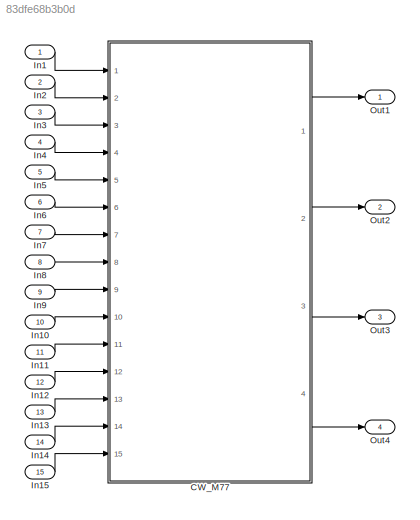
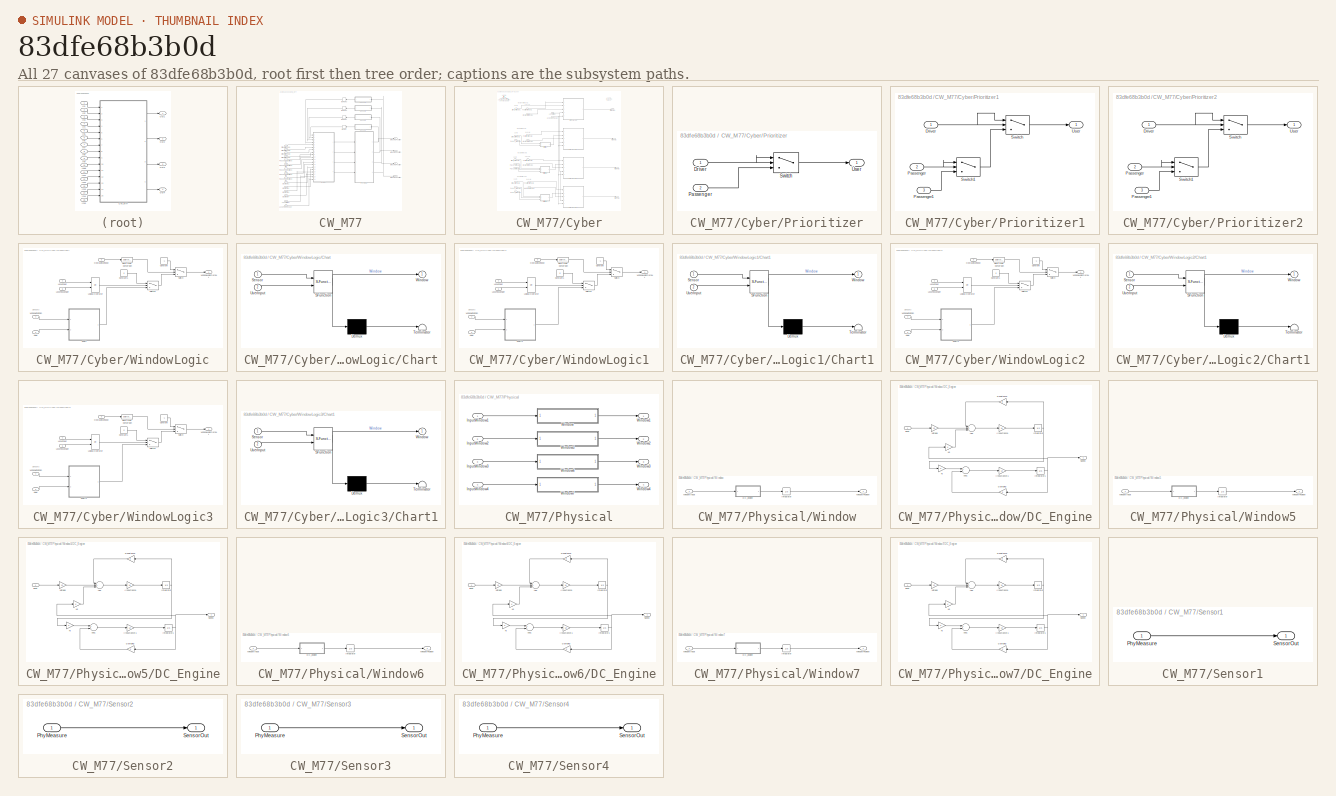
[diagram: thumbnail index - all 27 canvases of the model, root first then tree order]
MODEL slx_83dfe68b3b0d
KIND model
CONFIG AbsTol = auto
CONFIG EnableMultiTasking = off
CONFIG FixedStep = auto
CONFIG MaxStep = auto
CONFIG MinStep = auto
CONFIG RelTol = 1e-3
CONFIG SampleTimeConstraint = Unconstrained
CONFIG Solver = VariableStepAuto
CONFIG SolverName = VariableStepAuto
CONFIG StartTime = 0.0
CONFIG StopTime = 10.0
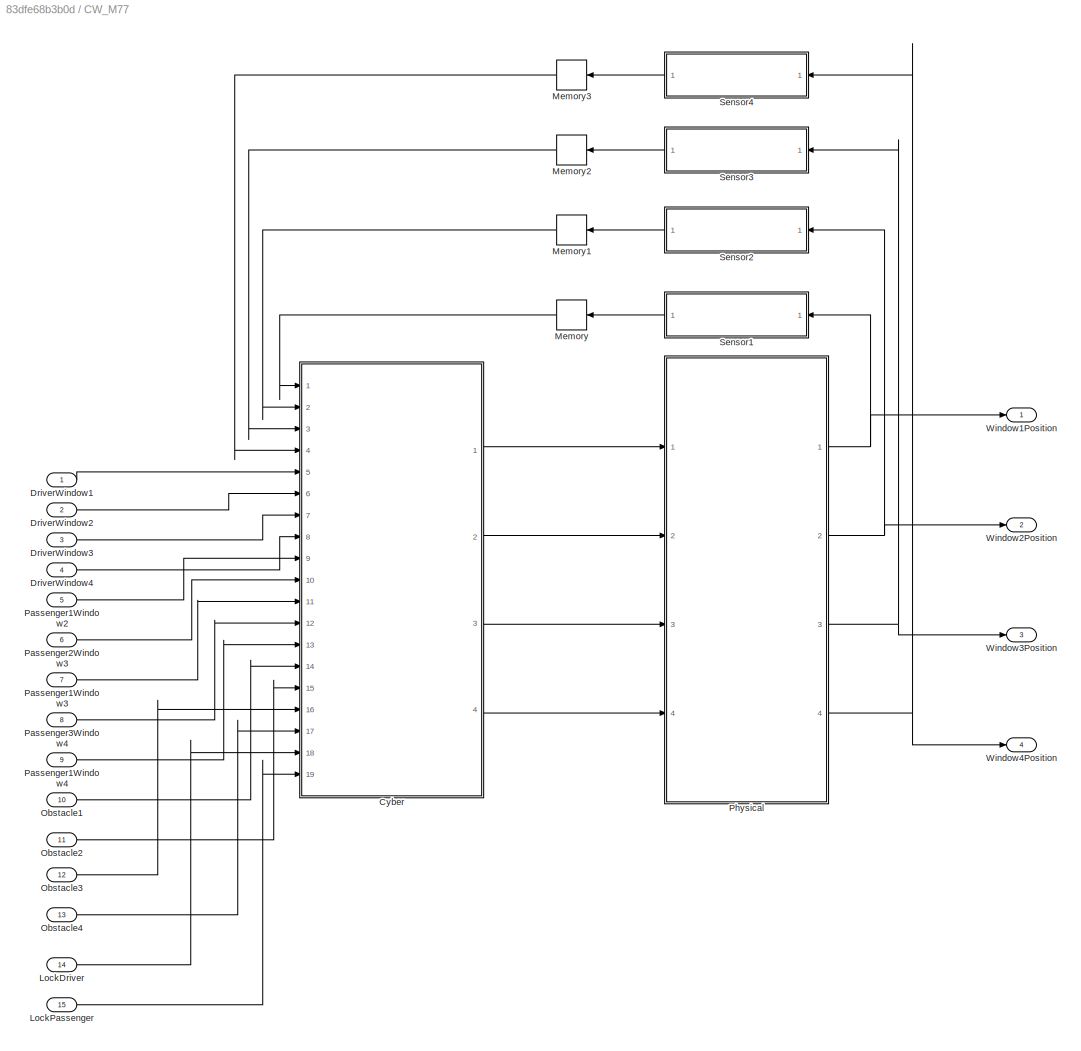
BLOCK [SubSystem] CW_M77
  Ports = [15, 4]
  RequestExecContextInheritance = off
  Variant = off
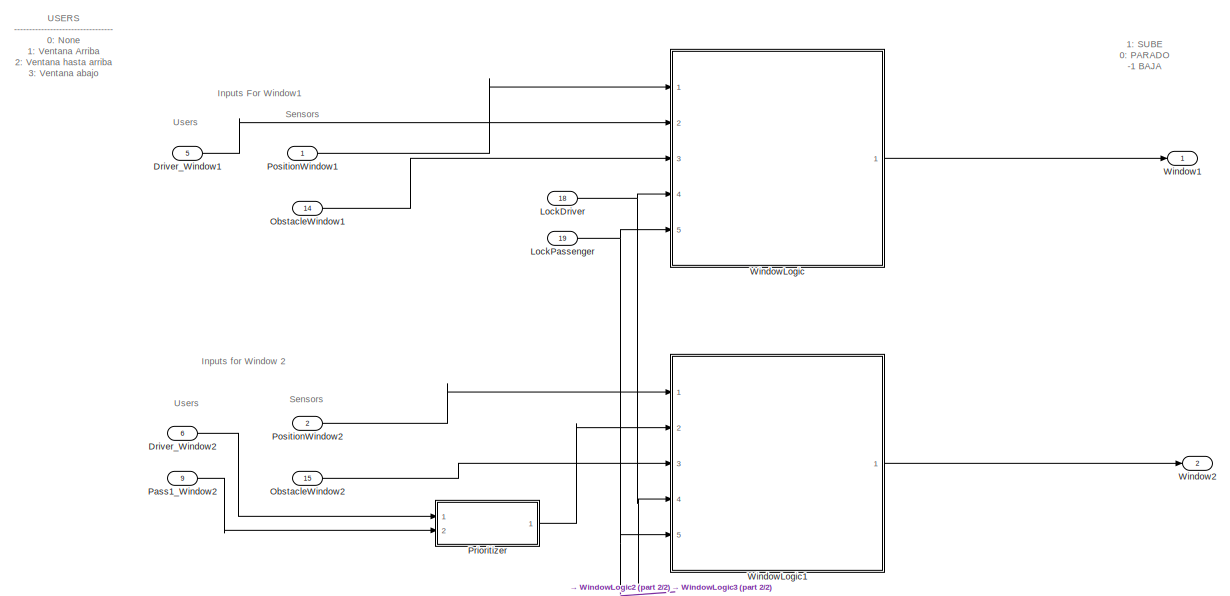
[diagram: CW_M77/Cyber - part 1/2, full width, top band]
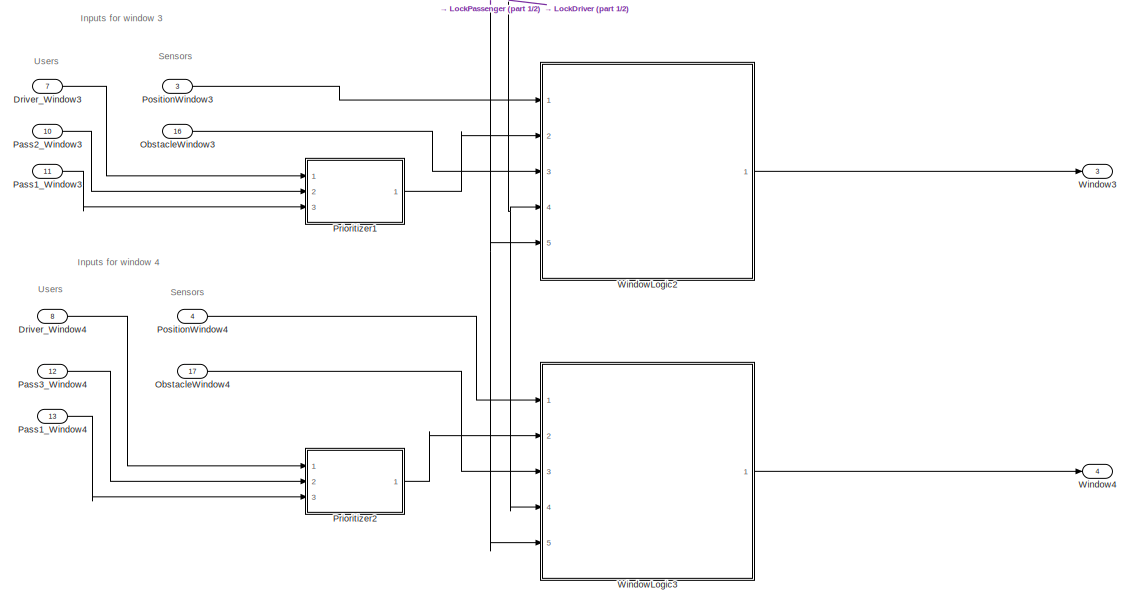
[diagram: CW_M77/Cyber - part 2/2, full width, bottom band]
BLOCK [SubSystem] CW_M77/Cyber
  Ports = [19, 4]
  RequestExecContextInheritance = off
  Variant = off
BLOCK [Inport] CW_M77/Cyber/Driver_Window1
  IconDisplay = Port number
  Port = 5
BLOCK [Inport] CW_M77/Cyber/Driver_Window2
  IconDisplay = Port number
  Port = 6
BLOCK [Inport] CW_M77/Cyber/Driver_Window3
  IconDisplay = Port number
  Port = 7
BLOCK [Inport] CW_M77/Cyber/Driver_Window4
  IconDisplay = Port number
  Port = 8
BLOCK [Inport] CW_M77/Cyber/LockDriver
  IconDisplay = Port number
  Port = 18
BLOCK [Inport] CW_M77/Cyber/LockPassenger
  IconDisplay = Port number
  Port = 19
BLOCK [Inport] CW_M77/Cyber/ObstacleWindow1
  IconDisplay = Port number
  Port = 14
BLOCK [Inport] CW_M77/Cyber/ObstacleWindow2
  IconDisplay = Port number
  Port = 15
BLOCK [Inport] CW_M77/Cyber/ObstacleWindow3
  IconDisplay = Port number
  Port = 16
BLOCK [Inport] CW_M77/Cyber/ObstacleWindow4
  IconDisplay = Port number
  Port = 17
BLOCK [Inport] CW_M77/Cyber/Pass1_Window2
  IconDisplay = Port number
  Port = 9
BLOCK [Inport] CW_M77/Cyber/Pass1_Window3
  IconDisplay = Port number
  Port = 11
BLOCK [Inport] CW_M77/Cyber/Pass1_Window4
  IconDisplay = Port number
  Port = 13
BLOCK [Inport] CW_M77/Cyber/Pass2_Window3
  IconDisplay = Port number
  Port = 10
BLOCK [Inport] CW_M77/Cyber/Pass3_Window4
  IconDisplay = Port number
  Port = 12
BLOCK [Inport] CW_M77/Cyber/PositionWindow1
  IconDisplay = Port number
BLOCK [Inport] CW_M77/Cyber/PositionWindow2
  IconDisplay = Port number
  Port = 2
BLOCK [Inport] CW_M77/Cyber/PositionWindow3
  IconDisplay = Port number
  Port = 3
BLOCK [Inport] CW_M77/Cyber/PositionWindow4
  IconDisplay = Port number
  Port = 4
BLOCK [SubSystem] CW_M77/Cyber/Prioritizer
  Ports = [2, 1]
  RequestExecContextInheritance = off
  Variant = off
BLOCK [Inport] CW_M77/Cyber/Prioritizer/Driver
  IconDisplay = Port number
BLOCK [Inport] CW_M77/Cyber/Prioritizer/Passenger
  IconDisplay = Port number
  Port = 2
BLOCK [Switch] CW_M77/Cyber/Prioritizer/Switch
  Criteria = u2 ~= 0
  InputSameDT = off
  SaturateOnIntegerOverflow = off
BLOCK [Outport] CW_M77/Cyber/Prioritizer/User
  IconDisplay = Port number
BLOCK [SubSystem] CW_M77/Cyber/Prioritizer1
  Ports = [3, 1]
  RequestExecContextInheritance = off
  Variant = off
BLOCK [Inport] CW_M77/Cyber/Prioritizer1/Driver
  IconDisplay = Port number
BLOCK [Inport] CW_M77/Cyber/Prioritizer1/Passenger
  IconDisplay = Port number
  Port = 2
BLOCK [Inport] CW_M77/Cyber/Prioritizer1/Passenger1
  IconDisplay = Port number
  Port = 3
BLOCK [Switch] CW_M77/Cyber/Prioritizer1/Switch
  Criteria = u2 ~= 0
  InputSameDT = off
  SaturateOnIntegerOverflow = off
BLOCK [Switch] CW_M77/Cyber/Prioritizer1/Switch1
  Criteria = u2 ~= 0
  InputSameDT = off
  SaturateOnIntegerOverflow = off
BLOCK [Outport] CW_M77/Cyber/Prioritizer1/User
  IconDisplay = Port number
BLOCK [SubSystem] CW_M77/Cyber/Prioritizer2
  Ports = [3, 1]
  RequestExecContextInheritance = off
  Variant = off
BLOCK [Inport] CW_M77/Cyber/Prioritizer2/Driver
  IconDisplay = Port number
BLOCK [Inport] CW_M77/Cyber/Prioritizer2/Passenger
  IconDisplay = Port number
  Port = 2
BLOCK [Inport] CW_M77/Cyber/Prioritizer2/Passenger1
  IconDisplay = Port number
  Port = 3
BLOCK [Switch] CW_M77/Cyber/Prioritizer2/Switch
  Criteria = u2 ~= 0
  InputSameDT = off
  SaturateOnIntegerOverflow = off
BLOCK [Switch] CW_M77/Cyber/Prioritizer2/Switch1
  Criteria = u2 ~= 0
  InputSameDT = off
  SaturateOnIntegerOverflow = off
BLOCK [Outport] CW_M77/Cyber/Prioritizer2/User
  IconDisplay = Port number
BLOCK [Outport] CW_M77/Cyber/Window1
  IconDisplay = Port number
BLOCK [Outport] CW_M77/Cyber/Window2
  IconDisplay = Port number
  Port = 2
BLOCK [Outport] CW_M77/Cyber/Window3
  IconDisplay = Port number
  Port = 3
BLOCK [Outport] CW_M77/Cyber/Window4
  IconDisplay = Port number
  Port = 4
BLOCK [SubSystem] CW_M77/Cyber/WindowLogic
  Ports = [5, 1]
  RequestExecContextInheritance = off
  Variant = off
BLOCK [SubSystem] CW_M77/Cyber/WindowLogic/Chart
  ErrorFcn = Stateflow.Translate.translate
  PermitHierarchicalResolution = ExplicitOnly
  Ports = [2, 1]
  RequestExecContextInheritance = off
  SFBlockType = Chart
  TreatAsAtomicUnit = on
  Variant = off
BLOCK [Demux] CW_M77/Cyber/WindowLogic/Chart/ Demux 
  Outputs = 1
  Ports = [1, 1]
BLOCK [S-Function] CW_M77/Cyber/WindowLogic/Chart/ SFunction 
  EnableBusSupport = off
  FunctionName = sf_sfun
  PortCounts = [2 2]
  Ports = [2, 2]
  SFcnIsStateOwnerBlock = off
  SFunctionDeploymentMode = off
  Tag = Stateflow S-Function CW_M77 29
BLOCK [Terminator] CW_M77/Cyber/WindowLogic/Chart/ Terminator 
BLOCK [Inport] CW_M77/Cyber/WindowLogic/Chart/Sensor
  IconDisplay = Port number
BLOCK [Inport] CW_M77/Cyber/WindowLogic/Chart/UserInput
  IconDisplay = Port number
  Port = 2
BLOCK [Outport] CW_M77/Cyber/WindowLogic/Chart/Window
  IconDisplay = Port number
BLOCK [Constant] CW_M77/Cyber/WindowLogic/Constant
  Value = -1
BLOCK [Constant] CW_M77/Cyber/WindowLogic/Constant1
  Value = 0
BLOCK [DataTypeConversion] CW_M77/Cyber/WindowLogic/Data Type Conversion
  RndMeth = Floor
  SaturateOnIntegerOverflow = off
BLOCK [Inport] CW_M77/Cyber/WindowLogic/LockDriver
  IconDisplay = Port number
  Port = 4
BLOCK [Inport] CW_M77/Cyber/WindowLogic/LockPassenger
  IconDisplay = Port number
  Port = 5
BLOCK [Logic] CW_M77/Cyber/WindowLogic/Logical Operator
  AllPortsSameDT = off
  Operator = OR
  OutDataTypeStr = boolean
  Ports = [2, 1]
BLOCK [Inport] CW_M77/Cyber/WindowLogic/ObstacleWindow
  IconDisplay = Port number
  Port = 3
BLOCK [Switch] CW_M77/Cyber/WindowLogic/Switch
  Criteria = u2 ~= 0
  InputSameDT = off
  SaturateOnIntegerOverflow = off
  Threshold = 1
  ZeroCross = off
BLOCK [Switch] CW_M77/Cyber/WindowLogic/Switch1
  Criteria = u2 ~= 0
  InputSameDT = off
  SaturateOnIntegerOverflow = off
BLOCK [Inport] CW_M77/Cyber/WindowLogic/User
  IconDisplay = Port number
  Port = 2
BLOCK [Outport] CW_M77/Cyber/WindowLogic/WindowLogicOutput
  IconDisplay = Port number
BLOCK [Inport] CW_M77/Cyber/WindowLogic/WindowPosition
  IconDisplay = Port number
BLOCK [SubSystem] CW_M77/Cyber/WindowLogic1
  Ports = [5, 1]
  RequestExecContextInheritance = off
  Variant = off
BLOCK [SubSystem] CW_M77/Cyber/WindowLogic1/Chart1
  ErrorFcn = Stateflow.Translate.translate
  PermitHierarchicalResolution = ExplicitOnly
  Ports = [2, 1]
  RequestExecContextInheritance = off
  SFBlockType = Chart
  TreatAsAtomicUnit = on
  Variant = off
BLOCK [Demux] CW_M77/Cyber/WindowLogic1/Chart1/ Demux 
  Outputs = 1
  Ports = [1, 1]
BLOCK [S-Function] CW_M77/Cyber/WindowLogic1/Chart1/ SFunction 
  EnableBusSupport = off
  FunctionName = sf_sfun
  PortCounts = [2 2]
  Ports = [2, 2]
  SFcnIsStateOwnerBlock = off
  SFunctionDeploymentMode = off
  Tag = Stateflow S-Function CW_M77 30
BLOCK [Terminator] CW_M77/Cyber/WindowLogic1/Chart1/ Terminator 
BLOCK [Inport] CW_M77/Cyber/WindowLogic1/Chart1/Sensor
  IconDisplay = Port number
BLOCK [Inport] CW_M77/Cyber/WindowLogic1/Chart1/UserInput
  IconDisplay = Port number
  Port = 2
BLOCK [Outport] CW_M77/Cyber/WindowLogic1/Chart1/Window
  IconDisplay = Port number
BLOCK [Constant] CW_M77/Cyber/WindowLogic1/Constant
  Value = -1
BLOCK [Constant] CW_M77/Cyber/WindowLogic1/Constant1
  Value = 0
BLOCK [DataTypeConversion] CW_M77/Cyber/WindowLogic1/Data Type Conversion
  RndMeth = Floor
  SaturateOnIntegerOverflow = off
BLOCK [Inport] CW_M77/Cyber/WindowLogic1/LockDriver
  IconDisplay = Port number
  Port = 4
BLOCK [Inport] CW_M77/Cyber/WindowLogic1/LockPassenger
  IconDisplay = Port number
  Port = 5
BLOCK [Logic] CW_M77/Cyber/WindowLogic1/Logical Operator
  AllPortsSameDT = off
  Operator = OR
  OutDataTypeStr = boolean
  Ports = [2, 1]
BLOCK [Inport] CW_M77/Cyber/WindowLogic1/ObstacleWindow
  IconDisplay = Port number
  Port = 3
BLOCK [Switch] CW_M77/Cyber/WindowLogic1/Switch
  Criteria = u2 ~= 0
  InputSameDT = off
  SaturateOnIntegerOverflow = off
  Threshold = 1
  ZeroCross = off
BLOCK [Switch] CW_M77/Cyber/WindowLogic1/Switch1
  Criteria = u2 ~= 0
  InputSameDT = off
  SaturateOnIntegerOverflow = off
BLOCK [Inport] CW_M77/Cyber/WindowLogic1/User
  IconDisplay = Port number
  Port = 2
BLOCK [Outport] CW_M77/Cyber/WindowLogic1/WindowLogicOutput
  IconDisplay = Port number
BLOCK [Inport] CW_M77/Cyber/WindowLogic1/WindowPosition
  IconDisplay = Port number
BLOCK [SubSystem] CW_M77/Cyber/WindowLogic2
  Ports = [5, 1]
  RequestExecContextInheritance = off
  Variant = off
BLOCK [SubSystem] CW_M77/Cyber/WindowLogic2/Chart1
  ErrorFcn = Stateflow.Translate.translate
  PermitHierarchicalResolution = ExplicitOnly
  Ports = [2, 1]
  RequestExecContextInheritance = off
  SFBlockType = Chart
  TreatAsAtomicUnit = on
  Variant = off
BLOCK [Demux] CW_M77/Cyber/WindowLogic2/Chart1/ Demux 
  Outputs = 1
  Ports = [1, 1]
BLOCK [S-Function] CW_M77/Cyber/WindowLogic2/Chart1/ SFunction 
  EnableBusSupport = off
  FunctionName = sf_sfun
  PortCounts = [2 2]
  Ports = [2, 2]
  SFcnIsStateOwnerBlock = off
  SFunctionDeploymentMode = off
  Tag = Stateflow S-Function CW_M77 31
BLOCK [Terminator] CW_M77/Cyber/WindowLogic2/Chart1/ Terminator 
BLOCK [Inport] CW_M77/Cyber/WindowLogic2/Chart1/Sensor
  IconDisplay = Port number
BLOCK [Inport] CW_M77/Cyber/WindowLogic2/Chart1/UserInput
  IconDisplay = Port number
  Port = 2
BLOCK [Outport] CW_M77/Cyber/WindowLogic2/Chart1/Window
  IconDisplay = Port number
BLOCK [Constant] CW_M77/Cyber/WindowLogic2/Constant
  Value = -1
BLOCK [Constant] CW_M77/Cyber/WindowLogic2/Constant1
  Value = 0
BLOCK [DataTypeConversion] CW_M77/Cyber/WindowLogic2/Data Type Conversion
  RndMeth = Floor
  SaturateOnIntegerOverflow = off
BLOCK [Inport] CW_M77/Cyber/WindowLogic2/LockDriver
  IconDisplay = Port number
  Port = 4
BLOCK [Inport] CW_M77/Cyber/WindowLogic2/LockPassenger
  IconDisplay = Port number
  Port = 5
BLOCK [Logic] CW_M77/Cyber/WindowLogic2/Logical Operator
  AllPortsSameDT = off
  Operator = OR
  OutDataTypeStr = boolean
  Ports = [2, 1]
BLOCK [Inport] CW_M77/Cyber/WindowLogic2/ObstacleWindow
  IconDisplay = Port number
  Port = 3
BLOCK [Switch] CW_M77/Cyber/WindowLogic2/Switch
  Criteria = u2 ~= 0
  InputSameDT = off
  SaturateOnIntegerOverflow = off
  Threshold = 1
  ZeroCross = off
BLOCK [Switch] CW_M77/Cyber/WindowLogic2/Switch1
  Criteria = u2 ~= 0
  InputSameDT = off
  SaturateOnIntegerOverflow = off
BLOCK [Inport] CW_M77/Cyber/WindowLogic2/User
  IconDisplay = Port number
  Port = 2
BLOCK [Outport] CW_M77/Cyber/WindowLogic2/WindowLogicOutput
  IconDisplay = Port number
BLOCK [Inport] CW_M77/Cyber/WindowLogic2/WindowPosition
  IconDisplay = Port number
BLOCK [SubSystem] CW_M77/Cyber/WindowLogic3
  Ports = [5, 1]
  RequestExecContextInheritance = off
  Variant = off
BLOCK [SubSystem] CW_M77/Cyber/WindowLogic3/Chart1
  ErrorFcn = Stateflow.Translate.translate
  PermitHierarchicalResolution = ExplicitOnly
  Ports = [2, 1]
  RequestExecContextInheritance = off
  SFBlockType = Chart
  TreatAsAtomicUnit = on
  Variant = off
BLOCK [Demux] CW_M77/Cyber/WindowLogic3/Chart1/ Demux 
  Outputs = 1
  Ports = [1, 1]
BLOCK [S-Function] CW_M77/Cyber/WindowLogic3/Chart1/ SFunction 
  EnableBusSupport = off
  FunctionName = sf_sfun
  PortCounts = [2 2]
  Ports = [2, 2]
  SFcnIsStateOwnerBlock = off
  SFunctionDeploymentMode = off
  Tag = Stateflow S-Function CW_M77 32
BLOCK [Terminator] CW_M77/Cyber/WindowLogic3/Chart1/ Terminator 
BLOCK [Inport] CW_M77/Cyber/WindowLogic3/Chart1/Sensor
  IconDisplay = Port number
BLOCK [Inport] CW_M77/Cyber/WindowLogic3/Chart1/UserInput
  IconDisplay = Port number
  Port = 2
BLOCK [Outport] CW_M77/Cyber/WindowLogic3/Chart1/Window
  IconDisplay = Port number
BLOCK [Constant] CW_M77/Cyber/WindowLogic3/Constant
  Value = -1
BLOCK [Constant] CW_M77/Cyber/WindowLogic3/Constant1
  Value = 0
BLOCK [DataTypeConversion] CW_M77/Cyber/WindowLogic3/Data Type Conversion
  RndMeth = Floor
  SaturateOnIntegerOverflow = off
BLOCK [Inport] CW_M77/Cyber/WindowLogic3/LockDriver
  IconDisplay = Port number
  Port = 4
BLOCK [Inport] CW_M77/Cyber/WindowLogic3/LockPassenger
  IconDisplay = Port number
  Port = 5
BLOCK [Logic] CW_M77/Cyber/WindowLogic3/Logical Operator
  AllPortsSameDT = off
  Operator = OR
  OutDataTypeStr = boolean
  Ports = [2, 1]
BLOCK [Inport] CW_M77/Cyber/WindowLogic3/ObstacleWindow
  IconDisplay = Port number
  Port = 3
BLOCK [Switch] CW_M77/Cyber/WindowLogic3/Switch
  Criteria = u2 ~= 0
  InputSameDT = off
  SaturateOnIntegerOverflow = off
  Threshold = 1
  ZeroCross = off
BLOCK [Switch] CW_M77/Cyber/WindowLogic3/Switch1
  Criteria = u2 ~= 0
  InputSameDT = off
  SaturateOnIntegerOverflow = off
BLOCK [Inport] CW_M77/Cyber/WindowLogic3/User
  IconDisplay = Port number
  Port = 2
BLOCK [Outport] CW_M77/Cyber/WindowLogic3/WindowLogicOutput
  IconDisplay = Port number
BLOCK [Inport] CW_M77/Cyber/WindowLogic3/WindowPosition
  IconDisplay = Port number
BLOCK [Inport] CW_M77/DriverWindow1
  IconDisplay = Port number
BLOCK [Inport] CW_M77/DriverWindow2
  IconDisplay = Port number
  Port = 2
BLOCK [Inport] CW_M77/DriverWindow3
  IconDisplay = Port number
  Port = 3
BLOCK [Inport] CW_M77/DriverWindow4
  IconDisplay = Port number
  Port = 4
BLOCK [Inport] CW_M77/LockDriver
  IconDisplay = Port number
  Port = 14
BLOCK [Inport] CW_M77/LockPassenger
  IconDisplay = Port number
  Port = 15
BLOCK [Memory] CW_M77/Memory
BLOCK [Memory] CW_M77/Memory1
BLOCK [Memory] CW_M77/Memory2
BLOCK [Memory] CW_M77/Memory3
BLOCK [Inport] CW_M77/Obstacle1
  IconDisplay = Port number
  Port = 10
BLOCK [Inport] CW_M77/Obstacle2
  IconDisplay = Port number
  Port = 11
BLOCK [Inport] CW_M77/Obstacle3
  IconDisplay = Port number
  Port = 12
BLOCK [Inport] CW_M77/Obstacle4
  IconDisplay = Port number
  Port = 13
BLOCK [Inport] CW_M77/Passenger1Window2
  IconDisplay = Port number
  Port = 5
BLOCK [Inport] CW_M77/Passenger1Window3
  IconDisplay = Port number
  Port = 7
BLOCK [Inport] CW_M77/Passenger1Window4
  IconDisplay = Port number
  Port = 9
BLOCK [Inport] CW_M77/Passenger2Window3
  IconDisplay = Port number
  Port = 6
BLOCK [Inport] CW_M77/Passenger3Window4
  IconDisplay = Port number
  Port = 8
BLOCK [SubSystem] CW_M77/Physical
  Ports = [4, 4]
  RequestExecContextInheritance = off
  Variant = off
BLOCK [Inport] CW_M77/Physical/InputWindow1
  IconDisplay = Port number
BLOCK [Inport] CW_M77/Physical/InputWindow2
  IconDisplay = Port number
  Port = 2
BLOCK [Inport] CW_M77/Physical/InputWindow3
  IconDisplay = Port number
  Port = 3
BLOCK [Inport] CW_M77/Physical/InputWindow4
  IconDisplay = Port number
  Port = 4
BLOCK [SubSystem] CW_M77/Physical/Window
  Ports = [1, 1]
  RequestExecContextInheritance = off
  Variant = off
BLOCK [SubSystem] CW_M77/Physical/Window/DC_Engine
  Ports = [1, 1]
  RequestExecContextInheritance = off
  Variant = off
BLOCK [Gain] CW_M77/Physical/Window/DC_Engine/(Inductance)
  Gain = 1/L
  OutDataTypeStr = Inherit: Inherit via internal rule
  ParamDataTypeStr = Inherit: Inherit via internal rule
  SaturateOnIntegerOverflow = off
BLOCK [Gain] CW_M77/Physical/Window/DC_Engine/(Inductance)1
  Gain = 1/J
  OutDataTypeStr = Inherit: Inherit via internal rule
  ParamDataTypeStr = Inherit: Inherit via internal rule
  SaturateOnIntegerOverflow = off
BLOCK [Sum] CW_M77/Physical/Window/DC_Engine/Add
  InputSameDT = off
  Inputs = -+-
  OutDataTypeStr = Inherit: Inherit via internal rule
  Ports = [3, 1]
  SaturateOnIntegerOverflow = off
BLOCK [Sum] CW_M77/Physical/Window/DC_Engine/Add1
  InputSameDT = off
  Inputs = +-
  OutDataTypeStr = Inherit: Inherit via internal rule
  Ports = [2, 1]
  SaturateOnIntegerOverflow = off
BLOCK [Gain] CW_M77/Physical/Window/DC_Engine/Damping
  Gain = b
  OutDataTypeStr = Inherit: Inherit via internal rule
  ParamDataTypeStr = Inherit: Inherit via internal rule
  SaturateOnIntegerOverflow = off
BLOCK [Integrator] CW_M77/Physical/Window/DC_Engine/Integrator
  Ports = [1, 1]
BLOCK [Integrator] CW_M77/Physical/Window/DC_Engine/Integrator1
  Ports = [1, 1]
BLOCK [Gain] CW_M77/Physical/Window/DC_Engine/Ke
  Gain = K
  OutDataTypeStr = Inherit: Inherit via internal rule
  ParamDataTypeStr = Inherit: Inherit via internal rule
  SaturateOnIntegerOverflow = off
BLOCK [Gain] CW_M77/Physical/Window/DC_Engine/Kt
  Gain = K
  OutDataTypeStr = Inherit: Inherit via internal rule
  ParamDataTypeStr = Inherit: Inherit via internal rule
  SaturateOnIntegerOverflow = off
BLOCK [Gain] CW_M77/Physical/Window/DC_Engine/Resistance
  Gain = R
  OutDataTypeStr = Inherit: Inherit via internal rule
  ParamDataTypeStr = Inherit: Inherit via internal rule
  SaturateOnIntegerOverflow = off
BLOCK [Outport] CW_M77/Physical/Window/DC_Engine/Speed
  IconDisplay = Port number
BLOCK [Gain] CW_M77/Physical/Window/DC_Engine/Voltage
  Gain = 10
  OutDataTypeStr = Inherit: Inherit via internal rule
  ParamDataTypeStr = Inherit: Inherit via internal rule
  SaturateOnIntegerOverflow = off
BLOCK [Inport] CW_M77/Physical/Window/DC_Engine/input
  IconDisplay = Port number
BLOCK [Integrator] CW_M77/Physical/Window/Integrator
  InitialCondition = 5
  LimitOutput = on
  LowerSaturationLimit = 0
  Ports = [1, 1]
  UpperSaturationLimit = 5
BLOCK [Inport] CW_M77/Physical/Window/WindowInput
  IconDisplay = Port number
BLOCK [Outport] CW_M77/Physical/Window/WindowPosition
  IconDisplay = Port number
BLOCK [Outport] CW_M77/Physical/Window1
  IconDisplay = Port number
BLOCK [Outport] CW_M77/Physical/Window2
  IconDisplay = Port number
  Port = 2
BLOCK [Outport] CW_M77/Physical/Window3
  IconDisplay = Port number
  Port = 3
BLOCK [Outport] CW_M77/Physical/Window4
  IconDisplay = Port number
  Port = 4
BLOCK [SubSystem] CW_M77/Physical/Window5
  Ports = [1, 1]
  RequestExecContextInheritance = off
  Variant = off
BLOCK [SubSystem] CW_M77/Physical/Window5/DC_Engine
  Ports = [1, 1]
  RequestExecContextInheritance = off
  Variant = off
BLOCK [Gain] CW_M77/Physical/Window5/DC_Engine/(Inductance)
  Gain = 1/L
  OutDataTypeStr = Inherit: Inherit via internal rule
  ParamDataTypeStr = Inherit: Inherit via internal rule
  SaturateOnIntegerOverflow = off
BLOCK [Gain] CW_M77/Physical/Window5/DC_Engine/(Inductance)1
  Gain = 1/J
  OutDataTypeStr = Inherit: Inherit via internal rule
  ParamDataTypeStr = Inherit: Inherit via internal rule
  SaturateOnIntegerOverflow = off
BLOCK [Sum] CW_M77/Physical/Window5/DC_Engine/Add
  InputSameDT = off
  Inputs = -+-
  OutDataTypeStr = Inherit: Inherit via internal rule
  Ports = [3, 1]
  SaturateOnIntegerOverflow = off
BLOCK [Sum] CW_M77/Physical/Window5/DC_Engine/Add1
  InputSameDT = off
  Inputs = +-
  OutDataTypeStr = Inherit: Inherit via internal rule
  Ports = [2, 1]
  SaturateOnIntegerOverflow = off
BLOCK [Gain] CW_M77/Physical/Window5/DC_Engine/Damping
  Gain = b
  OutDataTypeStr = Inherit: Inherit via internal rule
  ParamDataTypeStr = Inherit: Inherit via internal rule
  SaturateOnIntegerOverflow = off
BLOCK [Integrator] CW_M77/Physical/Window5/DC_Engine/Integrator
  Ports = [1, 1]
BLOCK [Integrator] CW_M77/Physical/Window5/DC_Engine/Integrator1
  Ports = [1, 1]
BLOCK [Gain] CW_M77/Physical/Window5/DC_Engine/Ke
  Gain = K
  OutDataTypeStr = Inherit: Inherit via internal rule
  ParamDataTypeStr = Inherit: Inherit via internal rule
  SaturateOnIntegerOverflow = off
BLOCK [Gain] CW_M77/Physical/Window5/DC_Engine/Kt
  Gain = K
  OutDataTypeStr = Inherit: Inherit via internal rule
  ParamDataTypeStr = Inherit: Inherit via internal rule
  SaturateOnIntegerOverflow = off
BLOCK [Gain] CW_M77/Physical/Window5/DC_Engine/Resistance
  Gain = R
  OutDataTypeStr = Inherit: Inherit via internal rule
  ParamDataTypeStr = Inherit: Inherit via internal rule
  SaturateOnIntegerOverflow = off
BLOCK [Outport] CW_M77/Physical/Window5/DC_Engine/Speed
  IconDisplay = Port number
BLOCK [Gain] CW_M77/Physical/Window5/DC_Engine/Voltage
  Gain = 10
  OutDataTypeStr = Inherit: Inherit via internal rule
  ParamDataTypeStr = Inherit: Inherit via internal rule
  SaturateOnIntegerOverflow = off
BLOCK [Inport] CW_M77/Physical/Window5/DC_Engine/input
  IconDisplay = Port number
BLOCK [Integrator] CW_M77/Physical/Window5/Integrator
  InitialCondition = 5
  LimitOutput = on
  LowerSaturationLimit = 0
  Ports = [1, 1]
  UpperSaturationLimit = 5
BLOCK [Inport] CW_M77/Physical/Window5/WindowInput
  IconDisplay = Port number
BLOCK [Outport] CW_M77/Physical/Window5/WindowPosition
  IconDisplay = Port number
BLOCK [SubSystem] CW_M77/Physical/Window6
  Ports = [1, 1]
  RequestExecContextInheritance = off
  Variant = off
BLOCK [SubSystem] CW_M77/Physical/Window6/DC_Engine
  Ports = [1, 1]
  RequestExecContextInheritance = off
  Variant = off
BLOCK [Gain] CW_M77/Physical/Window6/DC_Engine/(Inductance)
  Gain = 1/L
  OutDataTypeStr = Inherit: Inherit via internal rule
  ParamDataTypeStr = Inherit: Inherit via internal rule
  SaturateOnIntegerOverflow = off
BLOCK [Gain] CW_M77/Physical/Window6/DC_Engine/(Inductance)1
  Gain = 1/J
  OutDataTypeStr = Inherit: Inherit via internal rule
  ParamDataTypeStr = Inherit: Inherit via internal rule
  SaturateOnIntegerOverflow = off
BLOCK [Sum] CW_M77/Physical/Window6/DC_Engine/Add
  InputSameDT = off
  Inputs = -+-
  OutDataTypeStr = Inherit: Inherit via internal rule
  Ports = [3, 1]
  SaturateOnIntegerOverflow = off
BLOCK [Sum] CW_M77/Physical/Window6/DC_Engine/Add1
  InputSameDT = off
  Inputs = +-
  OutDataTypeStr = Inherit: Inherit via internal rule
  Ports = [2, 1]
  SaturateOnIntegerOverflow = off
BLOCK [Gain] CW_M77/Physical/Window6/DC_Engine/Damping
  Gain = b
  OutDataTypeStr = Inherit: Inherit via internal rule
  ParamDataTypeStr = Inherit: Inherit via internal rule
  SaturateOnIntegerOverflow = off
BLOCK [Integrator] CW_M77/Physical/Window6/DC_Engine/Integrator
  Ports = [1, 1]
BLOCK [Integrator] CW_M77/Physical/Window6/DC_Engine/Integrator1
  Ports = [1, 1]
BLOCK [Gain] CW_M77/Physical/Window6/DC_Engine/Ke
  Gain = K
  OutDataTypeStr = Inherit: Inherit via internal rule
  ParamDataTypeStr = Inherit: Inherit via internal rule
  SaturateOnIntegerOverflow = off
BLOCK [Gain] CW_M77/Physical/Window6/DC_Engine/Kt
  Gain = K
  OutDataTypeStr = Inherit: Inherit via internal rule
  ParamDataTypeStr = Inherit: Inherit via internal rule
  SaturateOnIntegerOverflow = off
BLOCK [Gain] CW_M77/Physical/Window6/DC_Engine/Resistance
  Gain = R
  OutDataTypeStr = Inherit: Inherit via internal rule
  ParamDataTypeStr = Inherit: Inherit via internal rule
  SaturateOnIntegerOverflow = off
BLOCK [Outport] CW_M77/Physical/Window6/DC_Engine/Speed
  IconDisplay = Port number
BLOCK [Gain] CW_M77/Physical/Window6/DC_Engine/Voltage
  Gain = 10
  OutDataTypeStr = Inherit: Inherit via internal rule
  ParamDataTypeStr = Inherit: Inherit via internal rule
  SaturateOnIntegerOverflow = off
BLOCK [Inport] CW_M77/Physical/Window6/DC_Engine/input
  IconDisplay = Port number
BLOCK [Integrator] CW_M77/Physical/Window6/Integrator
  InitialCondition = 5
  LimitOutput = on
  LowerSaturationLimit = 0
  Ports = [1, 1]
  UpperSaturationLimit = 5
BLOCK [Inport] CW_M77/Physical/Window6/WindowInput
  IconDisplay = Port number
BLOCK [Outport] CW_M77/Physical/Window6/WindowPosition
  IconDisplay = Port number
BLOCK [SubSystem] CW_M77/Physical/Window7
  Ports = [1, 1]
  RequestExecContextInheritance = off
  Variant = off
BLOCK [SubSystem] CW_M77/Physical/Window7/DC_Engine
  Ports = [1, 1]
  RequestExecContextInheritance = off
  Variant = off
BLOCK [Gain] CW_M77/Physical/Window7/DC_Engine/(Inductance)
  Gain = 1/L
  OutDataTypeStr = Inherit: Inherit via internal rule
  ParamDataTypeStr = Inherit: Inherit via internal rule
  SaturateOnIntegerOverflow = off
BLOCK [Gain] CW_M77/Physical/Window7/DC_Engine/(Inductance)1
  Gain = 1/J
  OutDataTypeStr = Inherit: Inherit via internal rule
  ParamDataTypeStr = Inherit: Inherit via internal rule
  SaturateOnIntegerOverflow = off
BLOCK [Sum] CW_M77/Physical/Window7/DC_Engine/Add
  InputSameDT = off
  Inputs = -+-
  OutDataTypeStr = Inherit: Inherit via internal rule
  Ports = [3, 1]
  SaturateOnIntegerOverflow = off
BLOCK [Sum] CW_M77/Physical/Window7/DC_Engine/Add1
  InputSameDT = off
  Inputs = +-
  OutDataTypeStr = Inherit: Inherit via internal rule
  Ports = [2, 1]
  SaturateOnIntegerOverflow = off
BLOCK [Gain] CW_M77/Physical/Window7/DC_Engine/Damping
  Gain = b
  OutDataTypeStr = Inherit: Inherit via internal rule
  ParamDataTypeStr = Inherit: Inherit via internal rule
  SaturateOnIntegerOverflow = off
BLOCK [Integrator] CW_M77/Physical/Window7/DC_Engine/Integrator
  Ports = [1, 1]
BLOCK [Integrator] CW_M77/Physical/Window7/DC_Engine/Integrator1
  Ports = [1, 1]
BLOCK [Gain] CW_M77/Physical/Window7/DC_Engine/Ke
  Gain = K
  OutDataTypeStr = Inherit: Inherit via internal rule
  ParamDataTypeStr = Inherit: Inherit via internal rule
  SaturateOnIntegerOverflow = off
BLOCK [Gain] CW_M77/Physical/Window7/DC_Engine/Kt
  Gain = K
  OutDataTypeStr = Inherit: Inherit via internal rule
  ParamDataTypeStr = Inherit: Inherit via internal rule
  SaturateOnIntegerOverflow = off
BLOCK [Gain] CW_M77/Physical/Window7/DC_Engine/Resistance
  Gain = R
  OutDataTypeStr = Inherit: Inherit via internal rule
  ParamDataTypeStr = Inherit: Inherit via internal rule
  SaturateOnIntegerOverflow = off
BLOCK [Outport] CW_M77/Physical/Window7/DC_Engine/Speed
  IconDisplay = Port number
BLOCK [Gain] CW_M77/Physical/Window7/DC_Engine/Voltage
  Gain = 10
  OutDataTypeStr = Inherit: Inherit via internal rule
  ParamDataTypeStr = Inherit: Inherit via internal rule
  SaturateOnIntegerOverflow = off
BLOCK [Inport] CW_M77/Physical/Window7/DC_Engine/input
  IconDisplay = Port number
BLOCK [Integrator] CW_M77/Physical/Window7/Integrator
  InitialCondition = 5
  LimitOutput = on
  LowerSaturationLimit = 0
  Ports = [1, 1]
  UpperSaturationLimit = 5
BLOCK [Inport] CW_M77/Physical/Window7/WindowInput
  IconDisplay = Port number
BLOCK [Outport] CW_M77/Physical/Window7/WindowPosition
  IconDisplay = Port number
BLOCK [SubSystem] CW_M77/Sensor1
  Ports = [1, 1]
  RequestExecContextInheritance = off
  Variant = off
BLOCK [Inport] CW_M77/Sensor1/PhyMeasure
  IconDisplay = Port number
BLOCK [Outport] CW_M77/Sensor1/SensorOut
  IconDisplay = Port number
BLOCK [SubSystem] CW_M77/Sensor2
  Ports = [1, 1]
  RequestExecContextInheritance = off
  Variant = off
BLOCK [Inport] CW_M77/Sensor2/PhyMeasure
  IconDisplay = Port number
BLOCK [Outport] CW_M77/Sensor2/SensorOut
  IconDisplay = Port number
BLOCK [SubSystem] CW_M77/Sensor3
  Ports = [1, 1]
  RequestExecContextInheritance = off
  Variant = off
BLOCK [Inport] CW_M77/Sensor3/PhyMeasure
  IconDisplay = Port number
BLOCK [Outport] CW_M77/Sensor3/SensorOut
  IconDisplay = Port number
BLOCK [SubSystem] CW_M77/Sensor4
  Ports = [1, 1]
  RequestExecContextInheritance = off
  Variant = off
BLOCK [Inport] CW_M77/Sensor4/PhyMeasure
  IconDisplay = Port number
BLOCK [Outport] CW_M77/Sensor4/SensorOut
  IconDisplay = Port number
BLOCK [Outport] CW_M77/Window1Position
  IconDisplay = Port number
BLOCK [Outport] CW_M77/Window2Position
  IconDisplay = Port number
  Port = 2
BLOCK [Outport] CW_M77/Window3Position
  IconDisplay = Port number
  Port = 3
BLOCK [Outport] CW_M77/Window4Position
  IconDisplay = Port number
  Port = 4
BLOCK [Inport] In1
  IconDisplay = Port number
BLOCK [Inport] In10
  IconDisplay = Port number
  Port = 10
BLOCK [Inport] In11
  IconDisplay = Port number
  Port = 11
BLOCK [Inport] In12
  IconDisplay = Port number
  Port = 12
BLOCK [Inport] In13
  IconDisplay = Port number
  Port = 13
BLOCK [Inport] In14
  IconDisplay = Port number
  Port = 14
BLOCK [Inport] In15
  IconDisplay = Port number
  Port = 15
BLOCK [Inport] In2
  IconDisplay = Port number
  Port = 2
BLOCK [Inport] In3
  IconDisplay = Port number
  Port = 3
BLOCK [Inport] In4
  IconDisplay = Port number
  Port = 4
BLOCK [Inport] In5
  IconDisplay = Port number
  Port = 5
BLOCK [Inport] In6
  IconDisplay = Port number
  Port = 6
BLOCK [Inport] In7
  IconDisplay = Port number
  Port = 7
BLOCK [Inport] In8
  IconDisplay = Port number
  Port = 8
BLOCK [Inport] In9
  IconDisplay = Port number
  Port = 9
BLOCK [Outport] Out1
  IconDisplay = Port number
BLOCK [Outport] Out2
  IconDisplay = Port number
  Port = 2
BLOCK [Outport] Out3
  IconDisplay = Port number
  Port = 3
BLOCK [Outport] Out4
  IconDisplay = Port number
  Port = 4
ANNOTATION CW_M77/Cyber: 1: SUBE 0: PARADO -1 BAJA
ANNOTATION CW_M77/Cyber: Inputs For Window1
ANNOTATION CW_M77/Cyber: Inputs for Window 2
ANNOTATION CW_M77/Cyber: Inputs for window 3
ANNOTATION CW_M77/Cyber: Inputs for window 4
ANNOTATION CW_M77/Cyber: Sensors
ANNOTATION CW_M77/Cyber: USERS --------------------------------- 0: None 1: Ventana Arriba 2: Ventana hasta arriba 3: Ventana abajo 4: Ventana hasta abajo
ANNOTATION CW_M77/Cyber: Users
ANNOTATION CW_M77/Cyber/WindowLogic: Sensors
ANNOTATION CW_M77/Cyber/WindowLogic1: Sensors
ANNOTATION CW_M77/Cyber/WindowLogic2: Sensors
ANNOTATION CW_M77/Cyber/WindowLogic3: Sensors
LINE CW_M77/Cyber/Driver_Window1:1 -> CW_M77/Cyber/WindowLogic:2
LINE CW_M77/Cyber/Driver_Window2:1 -> CW_M77/Cyber/Prioritizer:1
LINE CW_M77/Cyber/Driver_Window3:1 -> CW_M77/Cyber/Prioritizer1:1
LINE CW_M77/Cyber/Driver_Window4:1 -> CW_M77/Cyber/Prioritizer2:1
NET CW_M77/Cyber/LockDriver:1 -> CW_M77/Cyber/WindowLogic1:4, CW_M77/Cyber/WindowLogic2:4, CW_M77/Cyber/WindowLogic3:4, CW_M77/Cyber/WindowLogic:4
NET CW_M77/Cyber/LockPassenger:1 -> CW_M77/Cyber/WindowLogic1:5, CW_M77/Cyber/WindowLogic2:5, CW_M77/Cyber/WindowLogic3:5, CW_M77/Cyber/WindowLogic:5
LINE CW_M77/Cyber/ObstacleWindow1:1 -> CW_M77/Cyber/WindowLogic:3
LINE CW_M77/Cyber/ObstacleWindow2:1 -> CW_M77/Cyber/WindowLogic1:3
LINE CW_M77/Cyber/ObstacleWindow3:1 -> CW_M77/Cyber/WindowLogic2:3
LINE CW_M77/Cyber/ObstacleWindow4:1 -> CW_M77/Cyber/WindowLogic3:3
LINE CW_M77/Cyber/Pass1_Window2:1 -> CW_M77/Cyber/Prioritizer:2
LINE CW_M77/Cyber/Pass1_Window3:1 -> CW_M77/Cyber/Prioritizer1:3
LINE CW_M77/Cyber/Pass1_Window4:1 -> CW_M77/Cyber/Prioritizer2:3
LINE CW_M77/Cyber/Pass2_Window3:1 -> CW_M77/Cyber/Prioritizer1:2
LINE CW_M77/Cyber/Pass3_Window4:1 -> CW_M77/Cyber/Prioritizer2:2
LINE CW_M77/Cyber/PositionWindow1:1 -> CW_M77/Cyber/WindowLogic:1
LINE CW_M77/Cyber/PositionWindow2:1 -> CW_M77/Cyber/WindowLogic1:1
LINE CW_M77/Cyber/PositionWindow3:1 -> CW_M77/Cyber/WindowLogic2:1
LINE CW_M77/Cyber/PositionWindow4:1 -> CW_M77/Cyber/WindowLogic3:1
NET CW_M77/Cyber/Prioritizer/Driver:1 -> CW_M77/Cyber/Prioritizer/Switch:1, CW_M77/Cyber/Prioritizer/Switch:2
LINE CW_M77/Cyber/Prioritizer/Passenger:1 -> CW_M77/Cyber/Prioritizer/Switch:3
LINE CW_M77/Cyber/Prioritizer/Switch:1 -> CW_M77/Cyber/Prioritizer/User:1
NET CW_M77/Cyber/Prioritizer1/Driver:1 -> CW_M77/Cyber/Prioritizer1/Switch:1, CW_M77/Cyber/Prioritizer1/Switch:2
LINE CW_M77/Cyber/Prioritizer1/Passenger1:1 -> CW_M77/Cyber/Prioritizer1/Switch1:3
NET CW_M77/Cyber/Prioritizer1/Passenger:1 -> CW_M77/Cyber/Prioritizer1/Switch1:1, CW_M77/Cyber/Prioritizer1/Switch1:2
LINE CW_M77/Cyber/Prioritizer1/Switch1:1 -> CW_M77/Cyber/Prioritizer1/Switch:3
LINE CW_M77/Cyber/Prioritizer1/Switch:1 -> CW_M77/Cyber/Prioritizer1/User:1
LINE CW_M77/Cyber/Prioritizer1:1 -> CW_M77/Cyber/WindowLogic2:2
NET CW_M77/Cyber/Prioritizer2/Driver:1 -> CW_M77/Cyber/Prioritizer2/Switch:1, CW_M77/Cyber/Prioritizer2/Switch:2
LINE CW_M77/Cyber/Prioritizer2/Passenger1:1 -> CW_M77/Cyber/Prioritizer2/Switch1:3
NET CW_M77/Cyber/Prioritizer2/Passenger:1 -> CW_M77/Cyber/Prioritizer2/Switch1:1, CW_M77/Cyber/Prioritizer2/Switch1:2
LINE CW_M77/Cyber/Prioritizer2/Switch1:1 -> CW_M77/Cyber/Prioritizer2/Switch:3
LINE CW_M77/Cyber/Prioritizer2/Switch:1 -> CW_M77/Cyber/Prioritizer2/User:1
LINE CW_M77/Cyber/Prioritizer2:1 -> CW_M77/Cyber/WindowLogic3:2
LINE CW_M77/Cyber/Prioritizer:1 -> CW_M77/Cyber/WindowLogic1:2
LINE CW_M77/Cyber/WindowLogic/Chart:1 -> CW_M77/Cyber/WindowLogic/Switch1:3
LINE CW_M77/Cyber/WindowLogic/Constant1:1 -> CW_M77/Cyber/WindowLogic/Switch1:1
LINE CW_M77/Cyber/WindowLogic/Constant:1 -> CW_M77/Cyber/WindowLogic/Switch:1
LINE CW_M77/Cyber/WindowLogic/Data Type Conversion:1 -> CW_M77/Cyber/WindowLogic/Switch:2
LINE CW_M77/Cyber/WindowLogic/LockDriver:1 -> CW_M77/Cyber/WindowLogic/Logical Operator:1
LINE CW_M77/Cyber/WindowLogic/LockPassenger:1 -> CW_M77/Cyber/WindowLogic/Logical Operator:2
LINE CW_M77/Cyber/WindowLogic/Logical Operator:1 -> CW_M77/Cyber/WindowLogic/Switch1:2
LINE CW_M77/Cyber/WindowLogic/ObstacleWindow:1 -> CW_M77/Cyber/WindowLogic/Data Type Conversion:1
LINE CW_M77/Cyber/WindowLogic/Switch1:1 -> CW_M77/Cyber/WindowLogic/Switch:3
LINE CW_M77/Cyber/WindowLogic/Switch:1 -> CW_M77/Cyber/WindowLogic/WindowLogicOutput:1
LINE CW_M77/Cyber/WindowLogic/User:1 -> CW_M77/Cyber/WindowLogic/Chart:2
LINE CW_M77/Cyber/WindowLogic/WindowPosition:1 -> CW_M77/Cyber/WindowLogic/Chart:1
LINE CW_M77/Cyber/WindowLogic1/Chart1:1 -> CW_M77/Cyber/WindowLogic1/Switch1:3
LINE CW_M77/Cyber/WindowLogic1/Constant1:1 -> CW_M77/Cyber/WindowLogic1/Switch1:1
LINE CW_M77/Cyber/WindowLogic1/Constant:1 -> CW_M77/Cyber/WindowLogic1/Switch:1
LINE CW_M77/Cyber/WindowLogic1/Data Type Conversion:1 -> CW_M77/Cyber/WindowLogic1/Switch:2
LINE CW_M77/Cyber/WindowLogic1/LockDriver:1 -> CW_M77/Cyber/WindowLogic1/Logical Operator:1
LINE CW_M77/Cyber/WindowLogic1/LockPassenger:1 -> CW_M77/Cyber/WindowLogic1/Logical Operator:2
LINE CW_M77/Cyber/WindowLogic1/Logical Operator:1 -> CW_M77/Cyber/WindowLogic1/Switch1:2
LINE CW_M77/Cyber/WindowLogic1/ObstacleWindow:1 -> CW_M77/Cyber/WindowLogic1/Data Type Conversion:1
LINE CW_M77/Cyber/WindowLogic1/Switch1:1 -> CW_M77/Cyber/WindowLogic1/Switch:3
LINE CW_M77/Cyber/WindowLogic1/Switch:1 -> CW_M77/Cyber/WindowLogic1/WindowLogicOutput:1
LINE CW_M77/Cyber/WindowLogic1/User:1 -> CW_M77/Cyber/WindowLogic1/Chart1:2
LINE CW_M77/Cyber/WindowLogic1/WindowPosition:1 -> CW_M77/Cyber/WindowLogic1/Chart1:1
LINE CW_M77/Cyber/WindowLogic1:1 -> CW_M77/Cyber/Window2:1
LINE CW_M77/Cyber/WindowLogic2/Chart1:1 -> CW_M77/Cyber/WindowLogic2/Switch1:3
LINE CW_M77/Cyber/WindowLogic2/Constant1:1 -> CW_M77/Cyber/WindowLogic2/Switch1:1
LINE CW_M77/Cyber/WindowLogic2/Constant:1 -> CW_M77/Cyber/WindowLogic2/Switch:1
LINE CW_M77/Cyber/WindowLogic2/Data Type Conversion:1 -> CW_M77/Cyber/WindowLogic2/Switch:2
LINE CW_M77/Cyber/WindowLogic2/LockDriver:1 -> CW_M77/Cyber/WindowLogic2/Logical Operator:1
LINE CW_M77/Cyber/WindowLogic2/LockPassenger:1 -> CW_M77/Cyber/WindowLogic2/Logical Operator:2
LINE CW_M77/Cyber/WindowLogic2/Logical Operator:1 -> CW_M77/Cyber/WindowLogic2/Switch1:2
LINE CW_M77/Cyber/WindowLogic2/ObstacleWindow:1 -> CW_M77/Cyber/WindowLogic2/Data Type Conversion:1
LINE CW_M77/Cyber/WindowLogic2/Switch1:1 -> CW_M77/Cyber/WindowLogic2/Switch:3
LINE CW_M77/Cyber/WindowLogic2/Switch:1 -> CW_M77/Cyber/WindowLogic2/WindowLogicOutput:1
LINE CW_M77/Cyber/WindowLogic2/User:1 -> CW_M77/Cyber/WindowLogic2/Chart1:2
LINE CW_M77/Cyber/WindowLogic2/WindowPosition:1 -> CW_M77/Cyber/WindowLogic2/Chart1:1
LINE CW_M77/Cyber/WindowLogic2:1 -> CW_M77/Cyber/Window3:1
LINE CW_M77/Cyber/WindowLogic3/Chart1:1 -> CW_M77/Cyber/WindowLogic3/Switch1:3
LINE CW_M77/Cyber/WindowLogic3/Constant1:1 -> CW_M77/Cyber/WindowLogic3/Switch1:1
LINE CW_M77/Cyber/WindowLogic3/Constant:1 -> CW_M77/Cyber/WindowLogic3/Switch:1
LINE CW_M77/Cyber/WindowLogic3/Data Type Conversion:1 -> CW_M77/Cyber/WindowLogic3/Switch:2
LINE CW_M77/Cyber/WindowLogic3/LockDriver:1 -> CW_M77/Cyber/WindowLogic3/Logical Operator:1
LINE CW_M77/Cyber/WindowLogic3/LockPassenger:1 -> CW_M77/Cyber/WindowLogic3/Logical Operator:2
LINE CW_M77/Cyber/WindowLogic3/Logical Operator:1 -> CW_M77/Cyber/WindowLogic3/Switch1:2
LINE CW_M77/Cyber/WindowLogic3/ObstacleWindow:1 -> CW_M77/Cyber/WindowLogic3/Data Type Conversion:1
LINE CW_M77/Cyber/WindowLogic3/Switch1:1 -> CW_M77/Cyber/WindowLogic3/Switch:3
LINE CW_M77/Cyber/WindowLogic3/Switch:1 -> CW_M77/Cyber/WindowLogic3/WindowLogicOutput:1
LINE CW_M77/Cyber/WindowLogic3/User:1 -> CW_M77/Cyber/WindowLogic3/Chart1:2
LINE CW_M77/Cyber/WindowLogic3/WindowPosition:1 -> CW_M77/Cyber/WindowLogic3/Chart1:1
LINE CW_M77/Cyber/WindowLogic3:1 -> CW_M77/Cyber/Window4:1
LINE CW_M77/Cyber/WindowLogic:1 -> CW_M77/Cyber/Window1:1
LINE CW_M77/Cyber:1 -> CW_M77/Physical:1
LINE CW_M77/Cyber:2 -> CW_M77/Physical:2
LINE CW_M77/Cyber:3 -> CW_M77/Physical:3
LINE CW_M77/Cyber:4 -> CW_M77/Physical:4
LINE CW_M77/DriverWindow1:1 -> CW_M77/Cyber:5
LINE CW_M77/DriverWindow2:1 -> CW_M77/Cyber:6
LINE CW_M77/DriverWindow3:1 -> CW_M77/Cyber:7
LINE CW_M77/DriverWindow4:1 -> CW_M77/Cyber:8
LINE CW_M77/LockDriver:1 -> CW_M77/Cyber:18
LINE CW_M77/LockPassenger:1 -> CW_M77/Cyber:19
LINE CW_M77/Memory1:1 -> CW_M77/Cyber:2
LINE CW_M77/Memory2:1 -> CW_M77/Cyber:3
LINE CW_M77/Memory3:1 -> CW_M77/Cyber:4
LINE CW_M77/Memory:1 -> CW_M77/Cyber:1
LINE CW_M77/Obstacle1:1 -> CW_M77/Cyber:14
LINE CW_M77/Obstacle2:1 -> CW_M77/Cyber:15
LINE CW_M77/Obstacle3:1 -> CW_M77/Cyber:16
LINE CW_M77/Obstacle4:1 -> CW_M77/Cyber:17
LINE CW_M77/Passenger1Window2:1 -> CW_M77/Cyber:9
LINE CW_M77/Passenger1Window3:1 -> CW_M77/Cyber:11
LINE CW_M77/Passenger1Window4:1 -> CW_M77/Cyber:13
LINE CW_M77/Passenger2Window3:1 -> CW_M77/Cyber:10
LINE CW_M77/Passenger3Window4:1 -> CW_M77/Cyber:12
LINE CW_M77/Physical/InputWindow1:1 -> CW_M77/Physical/Window:1
LINE CW_M77/Physical/InputWindow2:1 -> CW_M77/Physical/Window5:1
LINE CW_M77/Physical/InputWindow3:1 -> CW_M77/Physical/Window6:1
LINE CW_M77/Physical/InputWindow4:1 -> CW_M77/Physical/Window7:1
LINE CW_M77/Physical/Window/DC_Engine/(Inductance)1:1 -> CW_M77/Physical/Window/DC_Engine/Integrator1:1
LINE CW_M77/Physical/Window/DC_Engine/(Inductance):1 -> CW_M77/Physical/Window/DC_Engine/Integrator:1
LINE CW_M77/Physical/Window/DC_Engine/Add1:1 -> CW_M77/Physical/Window/DC_Engine/(Inductance)1:1
LINE CW_M77/Physical/Window/DC_Engine/Add:1 -> CW_M77/Physical/Window/DC_Engine/(Inductance):1
LINE CW_M77/Physical/Window/DC_Engine/Damping:1 -> CW_M77/Physical/Window/DC_Engine/Add1:2
NET CW_M77/Physical/Window/DC_Engine/Integrator1:1 -> CW_M77/Physical/Window/DC_Engine/Damping:1, CW_M77/Physical/Window/DC_Engine/Ke:1, CW_M77/Physical/Window/DC_Engine/Speed:1
NET CW_M77/Physical/Window/DC_Engine/Integrator:1 -> CW_M77/Physical/Window/DC_Engine/Kt:1, CW_M77/Physical/Window/DC_Engine/Resistance:1
LINE CW_M77/Physical/Window/DC_Engine/Ke:1 -> CW_M77/Physical/Window/DC_Engine/Add:3
LINE CW_M77/Physical/Window/DC_Engine/Kt:1 -> CW_M77/Physical/Window/DC_Engine/Add1:1
LINE CW_M77/Physical/Window/DC_Engine/Resistance:1 -> CW_M77/Physical/Window/DC_Engine/Add:1
LINE CW_M77/Physical/Window/DC_Engine/Voltage:1 -> CW_M77/Physical/Window/DC_Engine/Add:2
LINE CW_M77/Physical/Window/DC_Engine/input:1 -> CW_M77/Physical/Window/DC_Engine/Voltage:1
LINE CW_M77/Physical/Window/DC_Engine:1 -> CW_M77/Physical/Window/Integrator:1
LINE CW_M77/Physical/Window/Integrator:1 -> CW_M77/Physical/Window/WindowPosition:1
LINE CW_M77/Physical/Window/WindowInput:1 -> CW_M77/Physical/Window/DC_Engine:1
LINE CW_M77/Physical/Window5/DC_Engine/(Inductance)1:1 -> CW_M77/Physical/Window5/DC_Engine/Integrator1:1
LINE CW_M77/Physical/Window5/DC_Engine/(Inductance):1 -> CW_M77/Physical/Window5/DC_Engine/Integrator:1
LINE CW_M77/Physical/Window5/DC_Engine/Add1:1 -> CW_M77/Physical/Window5/DC_Engine/(Inductance)1:1
LINE CW_M77/Physical/Window5/DC_Engine/Add:1 -> CW_M77/Physical/Window5/DC_Engine/(Inductance):1
LINE CW_M77/Physical/Window5/DC_Engine/Damping:1 -> CW_M77/Physical/Window5/DC_Engine/Add1:2
NET CW_M77/Physical/Window5/DC_Engine/Integrator1:1 -> CW_M77/Physical/Window5/DC_Engine/Damping:1, CW_M77/Physical/Window5/DC_Engine/Ke:1, CW_M77/Physical/Window5/DC_Engine/Speed:1
NET CW_M77/Physical/Window5/DC_Engine/Integrator:1 -> CW_M77/Physical/Window5/DC_Engine/Kt:1, CW_M77/Physical/Window5/DC_Engine/Resistance:1
LINE CW_M77/Physical/Window5/DC_Engine/Ke:1 -> CW_M77/Physical/Window5/DC_Engine/Add:3
LINE CW_M77/Physical/Window5/DC_Engine/Kt:1 -> CW_M77/Physical/Window5/DC_Engine/Add1:1
LINE CW_M77/Physical/Window5/DC_Engine/Resistance:1 -> CW_M77/Physical/Window5/DC_Engine/Add:1
LINE CW_M77/Physical/Window5/DC_Engine/Voltage:1 -> CW_M77/Physical/Window5/DC_Engine/Add:2
LINE CW_M77/Physical/Window5/DC_Engine/input:1 -> CW_M77/Physical/Window5/DC_Engine/Voltage:1
LINE CW_M77/Physical/Window5/DC_Engine:1 -> CW_M77/Physical/Window5/Integrator:1
LINE CW_M77/Physical/Window5/Integrator:1 -> CW_M77/Physical/Window5/WindowPosition:1
LINE CW_M77/Physical/Window5/WindowInput:1 -> CW_M77/Physical/Window5/DC_Engine:1
LINE CW_M77/Physical/Window5:1 -> CW_M77/Physical/Window2:1
LINE CW_M77/Physical/Window6/DC_Engine/(Inductance)1:1 -> CW_M77/Physical/Window6/DC_Engine/Integrator1:1
LINE CW_M77/Physical/Window6/DC_Engine/(Inductance):1 -> CW_M77/Physical/Window6/DC_Engine/Integrator:1
LINE CW_M77/Physical/Window6/DC_Engine/Add1:1 -> CW_M77/Physical/Window6/DC_Engine/(Inductance)1:1
LINE CW_M77/Physical/Window6/DC_Engine/Add:1 -> CW_M77/Physical/Window6/DC_Engine/(Inductance):1
LINE CW_M77/Physical/Window6/DC_Engine/Damping:1 -> CW_M77/Physical/Window6/DC_Engine/Add1:2
NET CW_M77/Physical/Window6/DC_Engine/Integrator1:1 -> CW_M77/Physical/Window6/DC_Engine/Damping:1, CW_M77/Physical/Window6/DC_Engine/Ke:1, CW_M77/Physical/Window6/DC_Engine/Speed:1
NET CW_M77/Physical/Window6/DC_Engine/Integrator:1 -> CW_M77/Physical/Window6/DC_Engine/Kt:1, CW_M77/Physical/Window6/DC_Engine/Resistance:1
LINE CW_M77/Physical/Window6/DC_Engine/Ke:1 -> CW_M77/Physical/Window6/DC_Engine/Add:3
LINE CW_M77/Physical/Window6/DC_Engine/Kt:1 -> CW_M77/Physical/Window6/DC_Engine/Add1:1
LINE CW_M77/Physical/Window6/DC_Engine/Resistance:1 -> CW_M77/Physical/Window6/DC_Engine/Add:1
LINE CW_M77/Physical/Window6/DC_Engine/Voltage:1 -> CW_M77/Physical/Window6/DC_Engine/Add:2
LINE CW_M77/Physical/Window6/DC_Engine/input:1 -> CW_M77/Physical/Window6/DC_Engine/Voltage:1
LINE CW_M77/Physical/Window6/DC_Engine:1 -> CW_M77/Physical/Window6/Integrator:1
LINE CW_M77/Physical/Window6/Integrator:1 -> CW_M77/Physical/Window6/WindowPosition:1
LINE CW_M77/Physical/Window6/WindowInput:1 -> CW_M77/Physical/Window6/DC_Engine:1
LINE CW_M77/Physical/Window6:1 -> CW_M77/Physical/Window3:1
LINE CW_M77/Physical/Window7/DC_Engine/(Inductance)1:1 -> CW_M77/Physical/Window7/DC_Engine/Integrator1:1
LINE CW_M77/Physical/Window7/DC_Engine/(Inductance):1 -> CW_M77/Physical/Window7/DC_Engine/Integrator:1
LINE CW_M77/Physical/Window7/DC_Engine/Add1:1 -> CW_M77/Physical/Window7/DC_Engine/(Inductance)1:1
LINE CW_M77/Physical/Window7/DC_Engine/Add:1 -> CW_M77/Physical/Window7/DC_Engine/(Inductance):1
LINE CW_M77/Physical/Window7/DC_Engine/Damping:1 -> CW_M77/Physical/Window7/DC_Engine/Add1:2
NET CW_M77/Physical/Window7/DC_Engine/Integrator1:1 -> CW_M77/Physical/Window7/DC_Engine/Damping:1, CW_M77/Physical/Window7/DC_Engine/Ke:1, CW_M77/Physical/Window7/DC_Engine/Speed:1
NET CW_M77/Physical/Window7/DC_Engine/Integrator:1 -> CW_M77/Physical/Window7/DC_Engine/Kt:1, CW_M77/Physical/Window7/DC_Engine/Resistance:1
LINE CW_M77/Physical/Window7/DC_Engine/Ke:1 -> CW_M77/Physical/Window7/DC_Engine/Add:3
LINE CW_M77/Physical/Window7/DC_Engine/Kt:1 -> CW_M77/Physical/Window7/DC_Engine/Add1:1
LINE CW_M77/Physical/Window7/DC_Engine/Resistance:1 -> CW_M77/Physical/Window7/DC_Engine/Add:1
LINE CW_M77/Physical/Window7/DC_Engine/Voltage:1 -> CW_M77/Physical/Window7/DC_Engine/Add:2
LINE CW_M77/Physical/Window7/DC_Engine/input:1 -> CW_M77/Physical/Window7/DC_Engine/Voltage:1
LINE CW_M77/Physical/Window7/DC_Engine:1 -> CW_M77/Physical/Window7/Integrator:1
LINE CW_M77/Physical/Window7/Integrator:1 -> CW_M77/Physical/Window7/WindowPosition:1
LINE CW_M77/Physical/Window7/WindowInput:1 -> CW_M77/Physical/Window7/DC_Engine:1
LINE CW_M77/Physical/Window7:1 -> CW_M77/Physical/Window4:1
LINE CW_M77/Physical/Window:1 -> CW_M77/Physical/Window1:1
NET CW_M77/Physical:1 -> CW_M77/Sensor1:1, CW_M77/Window1Position:1
NET CW_M77/Physical:2 -> CW_M77/Sensor2:1, CW_M77/Window2Position:1
NET CW_M77/Physical:3 -> CW_M77/Sensor3:1, CW_M77/Window3Position:1
NET CW_M77/Physical:4 -> CW_M77/Sensor4:1, CW_M77/Window4Position:1
LINE CW_M77/Sensor1/PhyMeasure:1 -> CW_M77/Sensor1/SensorOut:1
LINE CW_M77/Sensor1:1 -> CW_M77/Memory:1
LINE CW_M77/Sensor2/PhyMeasure:1 -> CW_M77/Sensor2/SensorOut:1
LINE CW_M77/Sensor2:1 -> CW_M77/Memory1:1
LINE CW_M77/Sensor3/PhyMeasure:1 -> CW_M77/Sensor3/SensorOut:1
LINE CW_M77/Sensor3:1 -> CW_M77/Memory2:1
LINE CW_M77/Sensor4/PhyMeasure:1 -> CW_M77/Sensor4/SensorOut:1
LINE CW_M77/Sensor4:1 -> CW_M77/Memory3:1
LINE CW_M77:1 -> Out1:1
LINE CW_M77:2 -> Out2:1
LINE CW_M77:3 -> Out3:1
LINE CW_M77:4 -> Out4:1
LINE In10:1 -> CW_M77:10
LINE In11:1 -> CW_M77:11
LINE In12:1 -> CW_M77:12
LINE In13:1 -> CW_M77:13
LINE In14:1 -> CW_M77:14
LINE In15:1 -> CW_M77:15
LINE In1:1 -> CW_M77:1
LINE In2:1 -> CW_M77:2
LINE In3:1 -> CW_M77:3
LINE In4:1 -> CW_M77:4
LINE In5:1 -> CW_M77:5
LINE In6:1 -> CW_M77:6
LINE In7:1 -> CW_M77:7
LINE In8:1 -> CW_M77:8
LINE In9:1 -> CW_M77:9
note: NET lines group one-source signal fan-out (src -> all destinations, sorted); 1:1 wires keep LINE
CHART CW_M77/Cyber/WindowLogic/Chart states=5 transitions=21
  STATE_LABEL 'Bajand_hasta_abajo\nentry: Window = -1;'
  STATE_LABEL 'Bajando\nentry: Window = -1;'
  STATE_LABEL 'Idle\nentry:Window = 0; \n'
  STATE_LABEL 'Subiendo_hasta_arriba\nentry: Window = 1;'
  STATE_LABEL 'Subiendo\nentry: Window = 1;'
CHART CW_M77/Cyber/WindowLogic1/Chart1 states=5 transitions=21
  STATE_LABEL 'Bajand_hasta_abajo\nentry: Window = -1;'
  STATE_LABEL 'Bajando\nentry: Window = -1;'
  STATE_LABEL 'Idle\nentry:Window = 0; \n'
  STATE_LABEL 'Subiendo_hasta_arriba\nentry: Window = 1;'
  STATE_LABEL 'Subiendo\nentry: Window = 1;'
CHART CW_M77/Cyber/WindowLogic2/Chart1 states=5 transitions=21
  STATE_LABEL 'Bajand_hasta_abajo\nentry: Window = -1;'
  STATE_LABEL 'Bajando\nentry: Window = -1;'
  STATE_LABEL 'Idle\nentry:Window = 0; \n'
  STATE_LABEL 'Subiendo_hasta_arriba\nentry: Window = 1;'
  STATE_LABEL 'Subiendo\nentry: Window = 1;'
CHART CW_M77/Cyber/WindowLogic3/Chart1 states=5 transitions=21
  STATE_LABEL 'Bajand_hasta_abajo\nentry: Window = -1;'
  STATE_LABEL 'Bajando\nentry: Window = -1;'
  STATE_LABEL 'Idle\nentry:Window = 0; \n'
  STATE_LABEL 'Subiendo_hasta_arriba\nentry: Window = 1;'
  STATE_LABEL 'Subiendo\nentry: Window = 1;'
